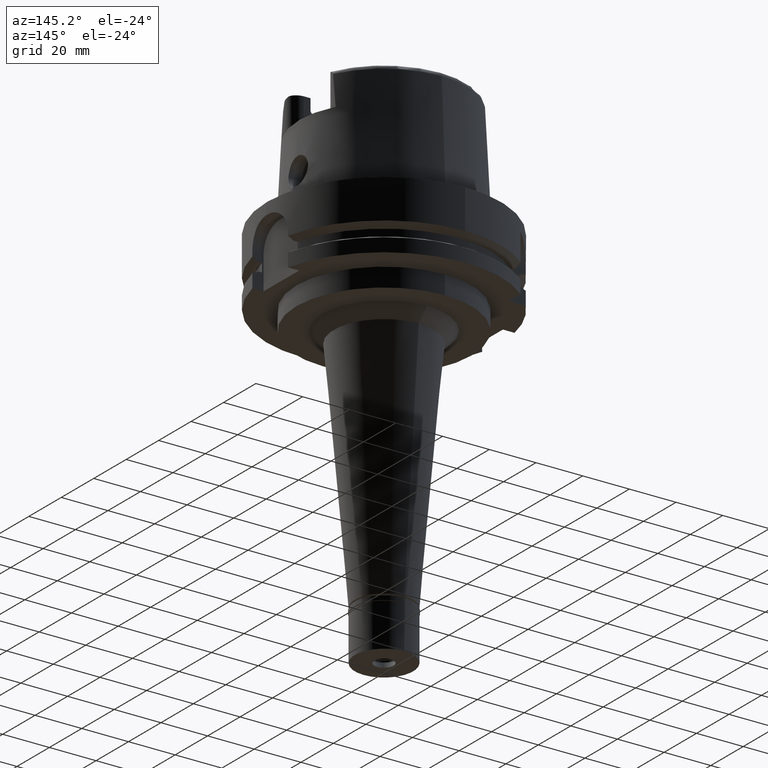
[diagram: clean part render]
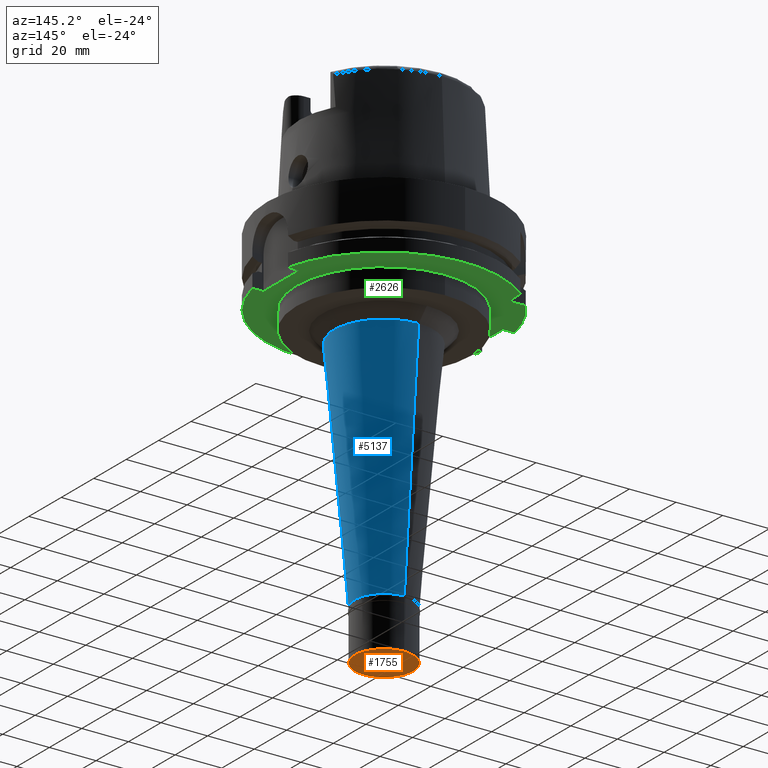
[diagram: same view with three faces highlighted in distinct colors, each labeled with its STEP entity id]
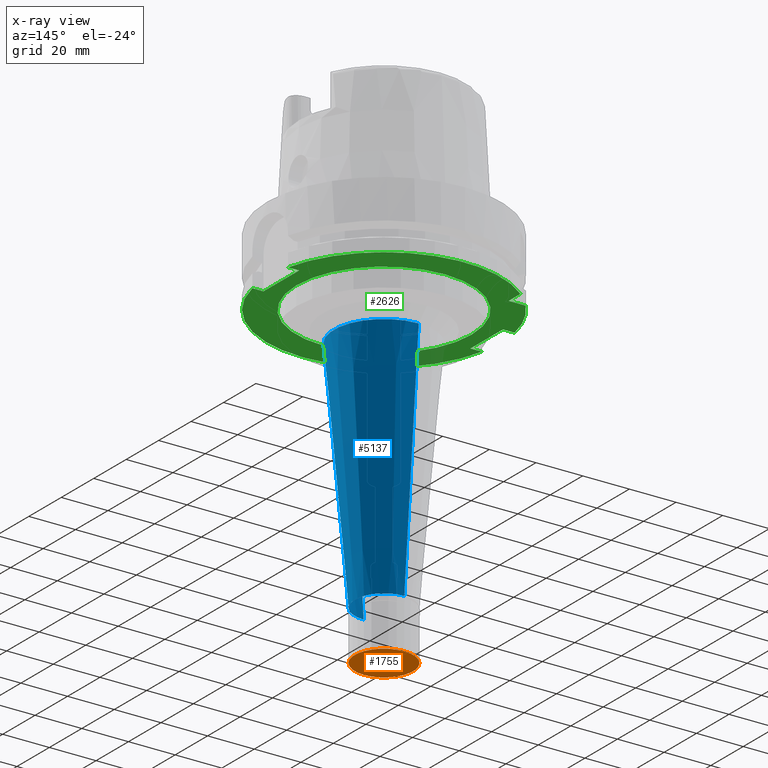
[diagram: x-ray of the same camera — body ghosted, the three highlighted faces saturated]
A machine part, auxiliary view with three faces highlighted in distinct colors.
The next image is the same camera in x-ray (body ghosted, the three faces saturated) — at least one of them is partly hidden behind the body in this view.
Their STEP definitions:

[orange] entity #1755 — the highlighted planar face has unit normal (0, 0, -1).
#207 = DIRECTION ( 'NONE',  ( 0.0000000000000000000, 0.0000000000000000000, 1.000000000000000000 ) ) ;
#307 = AXIS2_PLACEMENT_3D ( 'NONE', #686, #207, #2856 ) ;
#589 = FACE_BOUND ( 'NONE', #4442, .T. ) ;
#666 = CIRCLE ( 'NONE', #945, 4.050000000000999911 ) ;
#686 = CARTESIAN_POINT ( 'NONE',  ( 0.0000000000000000000, 0.0000000000000000000, -20.50000000000000000 ) ) ;
#698 = EDGE_CURVE ( 'NONE', #4753, #4783, #666, .T. ) ;
#824 = EDGE_CURVE ( 'NONE', #4783, #4753, #5352, .T. ) ;
#833 = DIRECTION ( 'NONE',  ( 0.0000000000000000000, -1.000000000000000000, 0.0000000000000000000 ) ) ;
#945 = AXIS2_PLACEMENT_3D ( 'NONE', #3186, #1554, #1143 ) ;
#1143 = DIRECTION ( 'NONE',  ( 0.0000000000000000000, -1.000000000000000000, 0.0000000000000000000 ) ) ;
#1216 = AXIS2_PLACEMENT_3D ( 'NONE', #2130, #3849, #833 ) ;
#1261 = ORIENTED_EDGE ( 'NONE', *, *, #698, .F. ) ;
#1324 = CARTESIAN_POINT ( 'NONE',  ( 0.0000000000000000000, 4.050000000000999911, -20.50000000000000000 ) ) ;
#1554 = DIRECTION ( 'NONE',  ( 0.0000000000000000000, 0.0000000000000000000, -1.000000000000000000 ) ) ;
#1660 = EDGE_LOOP ( 'NONE', ( #2672, #2416 ) ) ;
#1740 = CARTESIAN_POINT ( 'NONE',  ( 0.0000000000000000000, -4.050000000000999911, -20.50000000000000000 ) ) ;
#1755 = ADVANCED_FACE ( 'NONE', ( #4899, #589 ), #4425, .T. ) ;
#1983 = DIRECTION ( 'NONE',  ( 0.0000000000000000000, 1.000000000000000000, 0.0000000000000000000 ) ) ;
#2018 = AXIS2_PLACEMENT_3D ( 'NONE', #4538, #3726, #1983 ) ;
#2020 = ORIENTED_EDGE ( 'NONE', *, *, #824, .F. ) ;
#2130 = CARTESIAN_POINT ( 'NONE',  ( 0.0000000000000000000, 0.0000000000000000000, -20.50000000000000000 ) ) ;
#2233 = CARTESIAN_POINT ( 'NONE',  ( 0.0000000000000000000, 0.0000000000000000000, -20.50000000000000000 ) ) ;
#2416 = ORIENTED_EDGE ( 'NONE', *, *, #5203, .F. ) ;
#2651 = CIRCLE ( 'NONE', #307, 12.50000000000000000 ) ;
#2672 = ORIENTED_EDGE ( 'NONE', *, *, #5021, .F. ) ;
#2856 = DIRECTION ( 'NONE',  ( 0.0000000000000000000, 1.000000000000000000, 0.0000000000000000000 ) ) ;
#2939 = CARTESIAN_POINT ( 'NONE',  ( 0.0000000000000000000, 12.50000000000000000, -20.50000000000000000 ) ) ;
#3093 = DIRECTION ( 'NONE',  ( 0.0000000000000000000, -1.000000000000000000, 0.0000000000000000000 ) ) ;
#3186 = CARTESIAN_POINT ( 'NONE',  ( 0.0000000000000000000, 0.0000000000000000000, -20.50000000000000000 ) ) ;
#3552 = CIRCLE ( 'NONE', #1216, 12.50000000000000000 ) ;
#3655 = VERTEX_POINT ( 'NONE', #2939 ) ;
#3689 = VERTEX_POINT ( 'NONE', #4611 ) ;
#3726 = DIRECTION ( 'NONE',  ( 0.0000000000000000000, 0.0000000000000000000, -1.000000000000000000 ) ) ;
#3849 = DIRECTION ( 'NONE',  ( 0.0000000000000000000, 0.0000000000000000000, 1.000000000000000000 ) ) ;
#3971 = DIRECTION ( 'NONE',  ( 0.0000000000000000000, 0.0000000000000000000, -1.000000000000000000 ) ) ;
#3995 = AXIS2_PLACEMENT_3D ( 'NONE', #2233, #3971, #3093 ) ;
#4425 = PLANE ( 'NONE',  #3995 ) ;
#4442 = EDGE_LOOP ( 'NONE', ( #2020, #1261 ) ) ;
#4538 = CARTESIAN_POINT ( 'NONE',  ( 0.0000000000000000000, 0.0000000000000000000, -20.50000000000000000 ) ) ;
#4611 = CARTESIAN_POINT ( 'NONE',  ( 0.0000000000000000000, -12.50000000000000000, -20.50000000000000000 ) ) ;
#4753 = VERTEX_POINT ( 'NONE', #1740 ) ;
#4783 = VERTEX_POINT ( 'NONE', #1324 ) ;
#4899 = FACE_OUTER_BOUND ( 'NONE', #1660, .T. ) ;
#5021 = EDGE_CURVE ( 'NONE', #3655, #3689, #2651, .T. ) ;
#5203 = EDGE_CURVE ( 'NONE', #3689, #3655, #3552, .T. ) ;
#5352 = CIRCLE ( 'NONE', #2018, 4.050000000000999911 ) ;

[blue] entity #5137 — the highlighted conical surface has half-angle 5 deg.
#112 = EDGE_CURVE ( 'NONE', #2997, #4985, #3659, .T. ) ;
#282 = EDGE_CURVE ( 'NONE', #3418, #2997, #2431, .T. ) ;
#289 = CARTESIAN_POINT ( 'NONE',  ( 0.0000000000000000000, 0.0000000000000000000, -92.85000000000000853 ) ) ;
#422 = VECTOR ( 'NONE', #5090, 1000.000000000000227 ) ;
#527 = ORIENTED_EDGE ( 'NONE', *, *, #282, .T. ) ;
#692 = CARTESIAN_POINT ( 'NONE',  ( 0.0000000000000000000, 21.39759708058999976, -42.00000000000000000 ) ) ;
#982 = DIRECTION ( 'NONE',  ( 0.0000000000000000000, 0.0000000000000000000, 1.000000000000000000 ) ) ;
#1075 = DIRECTION ( 'NONE',  ( 0.0000000000000000000, -1.000000000000000000, 0.0000000000000000000 ) ) ;
#1136 = AXIS2_PLACEMENT_3D ( 'NONE', #3208, #4928, #1075 ) ;
#1233 = AXIS2_PLACEMENT_3D ( 'NONE', #1321, #982, #3028 ) ;
#1321 = CARTESIAN_POINT ( 'NONE',  ( 0.0000000000000000000, 0.0000000000000000000, -143.6999999999999886 ) ) ;
#1505 = DIRECTION ( 'NONE',  ( 0.0000000000000000000, 0.08715574274768382590, -0.9961946980917432137 ) ) ;
#1584 = VECTOR ( 'NONE', #1505, 1000.000000000000227 ) ;
#1605 = EDGE_LOOP ( 'NONE', ( #5482, #527, #2034, #2283 ) ) ;
#1961 = CARTESIAN_POINT ( 'NONE',  ( 0.0000000000000000000, -21.39759708058999976, -42.00000000000000000 ) ) ;
#2034 = ORIENTED_EDGE ( 'NONE', *, *, #112, .T. ) ;
#2227 = VERTEX_POINT ( 'NONE', #4394 ) ;
#2283 = ORIENTED_EDGE ( 'NONE', *, *, #3021, .F. ) ;
#2375 = CARTESIAN_POINT ( 'NONE',  ( 0.0000000000000000000, -21.39759708058999976, -42.00000000000000000 ) ) ;
#2377 = FACE_OUTER_BOUND ( 'NONE', #1605, .T. ) ;
#2431 = LINE ( 'NONE', #2375, #1584 ) ;
#2693 = EDGE_CURVE ( 'NONE', #3418, #2227, #4182, .T. ) ;
#2749 = CARTESIAN_POINT ( 'NONE',  ( 0.0000000000000000000, -12.50000000000000000, -143.6999999999999886 ) ) ;
#2997 = VERTEX_POINT ( 'NONE', #2749 ) ;
#3021 = EDGE_CURVE ( 'NONE', #2227, #4985, #3676, .T. ) ;
#3028 = DIRECTION ( 'NONE',  ( 0.0000000000000000000, -1.000000000000000000, 0.0000000000000000000 ) ) ;
#3208 = CARTESIAN_POINT ( 'NONE',  ( 0.0000000000000000000, 0.0000000000000000000, -42.00000000000000000 ) ) ;
#3418 = VERTEX_POINT ( 'NONE', #1961 ) ;
#3594 = DIRECTION ( 'NONE',  ( 0.0000000000000000000, 0.0000000000000000000, 1.000000000000000000 ) ) ;
#3659 = CIRCLE ( 'NONE', #1233, 12.50000000000000000 ) ;
#3673 = CARTESIAN_POINT ( 'NONE',  ( 0.0000000000000000000, 12.50000000000000000, -143.6999999999999886 ) ) ;
#3676 = LINE ( 'NONE', #692, #422 ) ;
#4066 = DIRECTION ( 'NONE',  ( 0.0000000000000000000, 1.000000000000000000, 0.0000000000000000000 ) ) ;
#4182 = CIRCLE ( 'NONE', #1136, 21.39759708058000243 ) ;
#4394 = CARTESIAN_POINT ( 'NONE',  ( 0.0000000000000000000, 21.39759708058999976, -42.00000000000000000 ) ) ;
#4530 = AXIS2_PLACEMENT_3D ( 'NONE', #289, #3594, #4066 ) ;
#4928 = DIRECTION ( 'NONE',  ( 0.0000000000000000000, 0.0000000000000000000, 1.000000000000000000 ) ) ;
#4985 = VERTEX_POINT ( 'NONE', #3673 ) ;
#5090 = DIRECTION ( 'NONE',  ( 0.0000000000000000000, -0.08715574274768382590, -0.9961946980917432137 ) ) ;
#5137 = ADVANCED_FACE ( 'NONE', ( #2377 ), #5356, .T. ) ;
#5356 = CONICAL_SURFACE ( 'NONE', #4530, 16.94879854029000299, 0.08726646259969973729 ) ;
#5482 = ORIENTED_EDGE ( 'NONE', *, *, #2693, .F. ) ;

[green] entity #2626 — the highlighted planar face has unit normal (0, 0, 1).
#6 = CARTESIAN_POINT ( 'NONE',  ( 0.0000000000000000000, 0.0000000000000000000, -29.00000000000000000 ) ) ;
#46 = CIRCLE ( 'NONE', #5449, 37.50000000000000000 ) ;
#93 = AXIS2_PLACEMENT_3D ( 'NONE', #2571, #3046, #2541 ) ;
#104 = VERTEX_POINT ( 'NONE', #1373 ) ;
#160 = VERTEX_POINT ( 'NONE', #238 ) ;
#238 = CARTESIAN_POINT ( 'NONE',  ( -31.50000000000000000, 31.50000000000000000, -29.00000000000000000 ) ) ;
#327 = ORIENTED_EDGE ( 'NONE', *, *, #4195, .F. ) ;
#333 = ORIENTED_EDGE ( 'NONE', *, *, #1032, .F. ) ;
#400 = VECTOR ( 'NONE', #2565, 1000.000000000000000 ) ;
#467 = VERTEX_POINT ( 'NONE', #5144 ) ;
#487 = DIRECTION ( 'NONE',  ( 0.0000000000000000000, 0.0000000000000000000, 1.000000000000000000 ) ) ;
#499 = DIRECTION ( 'NONE',  ( -1.000000000000000000, -4.627973610177000155E-14, 0.0000000000000000000 ) ) ;
#510 = CARTESIAN_POINT ( 'NONE',  ( 44.00000000000000000, -11.00000000000000000, -29.00000000000000000 ) ) ;
#602 = ORIENTED_EDGE ( 'NONE', *, *, #1073, .F. ) ;
#627 = VERTEX_POINT ( 'NONE', #4829 ) ;
#761 = LINE ( 'NONE', #2875, #1126 ) ;
#764 = EDGE_CURVE ( 'NONE', #993, #4500, #2822, .T. ) ;
#775 = ORIENTED_EDGE ( 'NONE', *, *, #3548, .F. ) ;
#798 = CARTESIAN_POINT ( 'NONE',  ( 0.0000000000000000000, 0.0000000000000000000, -29.00000000000000000 ) ) ;
#851 = CARTESIAN_POINT ( 'NONE',  ( -31.50000000000000000, 31.50000000000000000, -29.00000000000000000 ) ) ;
#896 = DIRECTION ( 'NONE',  ( 0.0000000000000000000, 0.0000000000000000000, 1.000000000000000000 ) ) ;
#988 = DIRECTION ( 'NONE',  ( 0.0000000000000000000, 1.000000000000000000, 0.0000000000000000000 ) ) ;
#993 = VERTEX_POINT ( 'NONE', #5170 ) ;
#1026 = AXIS2_PLACEMENT_3D ( 'NONE', #2852, #2427, #3268 ) ;
#1032 = EDGE_CURVE ( 'NONE', #627, #4619, #1559, .T. ) ;
#1073 = EDGE_CURVE ( 'NONE', #2480, #2687, #1393, .T. ) ;
#1126 = VECTOR ( 'NONE', #2786, 1000.000000000000000 ) ;
#1255 = DIRECTION ( 'NONE',  ( 0.0000000000000000000, 0.0000000000000000000, -1.000000000000000000 ) ) ;
#1265 = DIRECTION ( 'NONE',  ( 0.0000000000000000000, -1.000000000000000000, 0.0000000000000000000 ) ) ;
#1295 = VERTEX_POINT ( 'NONE', #1422 ) ;
#1373 = CARTESIAN_POINT ( 'NONE',  ( -44.00000000000000000, -10.00000000000000000, -29.00000000000000000 ) ) ;
#1388 = EDGE_CURVE ( 'NONE', #160, #4500, #761, .T. ) ;
#1393 = CIRCLE ( 'NONE', #3359, 37.50000000000000000 ) ;
#1422 = CARTESIAN_POINT ( 'NONE',  ( -44.00000000000000000, 10.00000000000000000, -29.00000000000000000 ) ) ;
#1460 = ORIENTED_EDGE ( 'NONE', *, *, #3784, .F. ) ;
#1490 = DIRECTION ( 'NONE',  ( 0.0000000000000000000, 0.0000000000000000000, -1.000000000000000000 ) ) ;
#1520 = VERTEX_POINT ( 'NONE', #3754 ) ;
#1559 = CIRCLE ( 'NONE', #3177, 50.00000000000000000 ) ;
#1665 = DIRECTION ( 'NONE',  ( 1.000000000000000000, -1.785659532940000023E-14, 0.0000000000000000000 ) ) ;
#1702 = EDGE_CURVE ( 'NONE', #160, #1520, #4653, .T. ) ;
#1711 = CARTESIAN_POINT ( 'NONE',  ( 0.0000000000000000000, 37.50000000000000000, -29.00000000000000000 ) ) ;
#1863 = DIRECTION ( 'NONE',  ( 1.000000000000000000, 1.711257052401000108E-14, 0.0000000000000000000 ) ) ;
#1887 = EDGE_CURVE ( 'NONE', #5074, #4619, #4373, .T. ) ;
#1944 = DIRECTION ( 'NONE',  ( 0.0000000000000000000, -1.000000000000000000, 0.0000000000000000000 ) ) ;
#1984 = CIRCLE ( 'NONE', #93, 50.00000000000000711 ) ;
#2009 = DIRECTION ( 'NONE',  ( -1.000000000000000000, 4.627973610177000155E-14, 0.0000000000000000000 ) ) ;
#2182 = DIRECTION ( 'NONE',  ( 0.0000000000000000000, 1.000000000000000000, 0.0000000000000000000 ) ) ;
#2230 = EDGE_LOOP ( 'NONE', ( #4471, #1460, #5128, #3941, #333, #327, #2712, #3885, #775, #4515, #2272 ) ) ;
#2272 = ORIENTED_EDGE ( 'NONE', *, *, #1388, .T. ) ;
#2299 = EDGE_CURVE ( 'NONE', #104, #1295, #5243, .T. ) ;
#2367 = LINE ( 'NONE', #5535, #4326 ) ;
#2427 = DIRECTION ( 'NONE',  ( 0.0000000000000000000, 0.0000000000000000000, 1.000000000000000000 ) ) ;
#2464 = VECTOR ( 'NONE', #2009, 1000.000000000000000 ) ;
#2480 = VERTEX_POINT ( 'NONE', #1711 ) ;
#2541 = DIRECTION ( 'NONE',  ( -0.7765951326141738997, 0.6299999999999789102, 0.0000000000000000000 ) ) ;
#2565 = DIRECTION ( 'NONE',  ( -1.000000000000000000, -4.798503851105999980E-14, 0.0000000000000000000 ) ) ;
#2571 = CARTESIAN_POINT ( 'NONE',  ( 0.0000000000000000000, 0.0000000000000000000, -29.00000000000000000 ) ) ;
#2626 = ADVANCED_FACE ( 'NONE', ( #3768, #5178 ), #3027, .F. ) ;
#2628 = DIRECTION ( 'NONE',  ( 0.0000000000000000000, -1.000000000000000000, 0.0000000000000000000 ) ) ;
#2687 = VERTEX_POINT ( 'NONE', #4523 ) ;
#2712 = ORIENTED_EDGE ( 'NONE', *, *, #2299, .T. ) ;
#2786 = DIRECTION ( 'NONE',  ( 4.798503851105999980E-14, 1.000000000000000000, 0.0000000000000000000 ) ) ;
#2822 = CIRCLE ( 'NONE', #1026, 50.00000000000000000 ) ;
#2852 = CARTESIAN_POINT ( 'NONE',  ( 0.0000000000000000000, 0.0000000000000000000, -29.00000000000000000 ) ) ;
#2875 = CARTESIAN_POINT ( 'NONE',  ( -31.50000000000000000, 31.50000000000000000, -29.00000000000000000 ) ) ;
#3027 = PLANE ( 'NONE',  #5186 ) ;
#3046 = DIRECTION ( 'NONE',  ( 0.0000000000000000000, 0.0000000000000000000, 1.000000000000000000 ) ) ;
#3177 = AXIS2_PLACEMENT_3D ( 'NONE', #6, #487, #2628 ) ;
#3268 = DIRECTION ( 'NONE',  ( 0.0000000000000000000, 1.000000000000000000, 0.0000000000000000000 ) ) ;
#3359 = AXIS2_PLACEMENT_3D ( 'NONE', #798, #1255, #2182 ) ;
#3479 = CARTESIAN_POINT ( 'NONE',  ( 44.00000000000000000, 11.00000000000000000, -29.00000000000000000 ) ) ;
#3548 = EDGE_CURVE ( 'NONE', #1520, #467, #1984, .T. ) ;
#3557 = VECTOR ( 'NONE', #1863, 1000.000000000000000 ) ;
#3731 = VECTOR ( 'NONE', #988, 1000.000000000000000 ) ;
#3754 = CARTESIAN_POINT ( 'NONE',  ( -38.82975663071000128, 31.50000000000000000, -29.00000000000000000 ) ) ;
#3768 = FACE_OUTER_BOUND ( 'NONE', #2230, .T. ) ;
#3784 = EDGE_CURVE ( 'NONE', #5244, #993, #2367, .T. ) ;
#3855 = LINE ( 'NONE', #5586, #5142 ) ;
#3885 = ORIENTED_EDGE ( 'NONE', *, *, #5304, .T. ) ;
#3941 = ORIENTED_EDGE ( 'NONE', *, *, #1887, .T. ) ;
#3956 = CARTESIAN_POINT ( 'NONE',  ( -44.00000000000000000, -10.00000000000000000, -29.00000000000000000 ) ) ;
#4104 = EDGE_CURVE ( 'NONE', #5244, #5074, #3855, .T. ) ;
#4165 = LINE ( 'NONE', #5112, #2464 ) ;
#4195 = EDGE_CURVE ( 'NONE', #104, #627, #4798, .T. ) ;
#4302 = DIRECTION ( 'NONE',  ( 1.000000000000000000, 0.0000000000000000000, 0.0000000000000000000 ) ) ;
#4326 = VECTOR ( 'NONE', #1665, 1000.000000000000000 ) ;
#4373 = LINE ( 'NONE', #510, #3557 ) ;
#4471 = ORIENTED_EDGE ( 'NONE', *, *, #764, .F. ) ;
#4500 = VERTEX_POINT ( 'NONE', #5035 ) ;
#4515 = ORIENTED_EDGE ( 'NONE', *, *, #1702, .F. ) ;
#4523 = CARTESIAN_POINT ( 'NONE',  ( 0.0000000000000000000, -37.50000000000000000, -29.00000000000000000 ) ) ;
#4599 = EDGE_LOOP ( 'NONE', ( #602, #4871 ) ) ;
#4619 = VERTEX_POINT ( 'NONE', #4693 ) ;
#4653 = LINE ( 'NONE', #851, #400 ) ;
#4693 = CARTESIAN_POINT ( 'NONE',  ( 48.77499359303000404, -11.00000000000000000, -29.00000000000000000 ) ) ;
#4746 = CARTESIAN_POINT ( 'NONE',  ( 0.0000000000000000000, 0.0000000000000000000, -29.00000000000000000 ) ) ;
#4798 = LINE ( 'NONE', #3956, #5509 ) ;
#4829 = CARTESIAN_POINT ( 'NONE',  ( -48.98979485565999425, -10.00000000000000000, -29.00000000000000000 ) ) ;
#4839 = CARTESIAN_POINT ( 'NONE',  ( -44.00000000000000000, -10.00000000000000000, -29.00000000000000000 ) ) ;
#4871 = ORIENTED_EDGE ( 'NONE', *, *, #5413, .F. ) ;
#4967 = CARTESIAN_POINT ( 'NONE',  ( 44.00000000000000000, -11.00000000000000000, -29.00000000000000000 ) ) ;
#5035 = CARTESIAN_POINT ( 'NONE',  ( -31.50000000000000000, 38.82975663071000128, -29.00000000000000000 ) ) ;
#5074 = VERTEX_POINT ( 'NONE', #4967 ) ;
#5112 = CARTESIAN_POINT ( 'NONE',  ( -44.00000000000000000, 10.00000000000000000, -29.00000000000000000 ) ) ;
#5128 = ORIENTED_EDGE ( 'NONE', *, *, #4104, .T. ) ;
#5142 = VECTOR ( 'NONE', #1265, 1000.000000000000000 ) ;
#5144 = CARTESIAN_POINT ( 'NONE',  ( -48.98979485565999425, 10.00000000000000000, -29.00000000000000000 ) ) ;
#5170 = CARTESIAN_POINT ( 'NONE',  ( 48.77499359303000404, 11.00000000000000000, -29.00000000000000000 ) ) ;
#5178 = FACE_BOUND ( 'NONE', #4599, .T. ) ;
#5186 = AXIS2_PLACEMENT_3D ( 'NONE', #4746, #896, #4302 ) ;
#5243 = LINE ( 'NONE', #4839, #3731 ) ;
#5244 = VERTEX_POINT ( 'NONE', #3479 ) ;
#5304 = EDGE_CURVE ( 'NONE', #1295, #467, #4165, .T. ) ;
#5413 = EDGE_CURVE ( 'NONE', #2687, #2480, #46, .T. ) ;
#5449 = AXIS2_PLACEMENT_3D ( 'NONE', #5473, #1490, #1944 ) ;
#5473 = CARTESIAN_POINT ( 'NONE',  ( 0.0000000000000000000, 0.0000000000000000000, -29.00000000000000000 ) ) ;
#5509 = VECTOR ( 'NONE', #499, 1000.000000000000000 ) ;
#5535 = CARTESIAN_POINT ( 'NONE',  ( 44.00000000000000000, 11.00000000000000000, -29.00000000000000000 ) ) ;
#5586 = CARTESIAN_POINT ( 'NONE',  ( 44.00000000000000000, 11.00000000000000000, -29.00000000000000000 ) ) ;